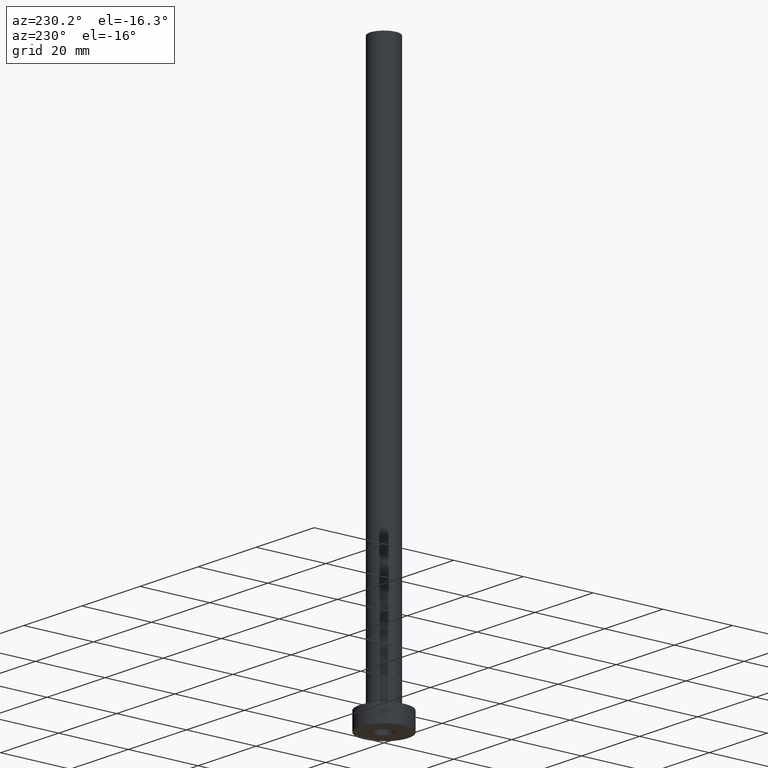
[diagram: clean part render]
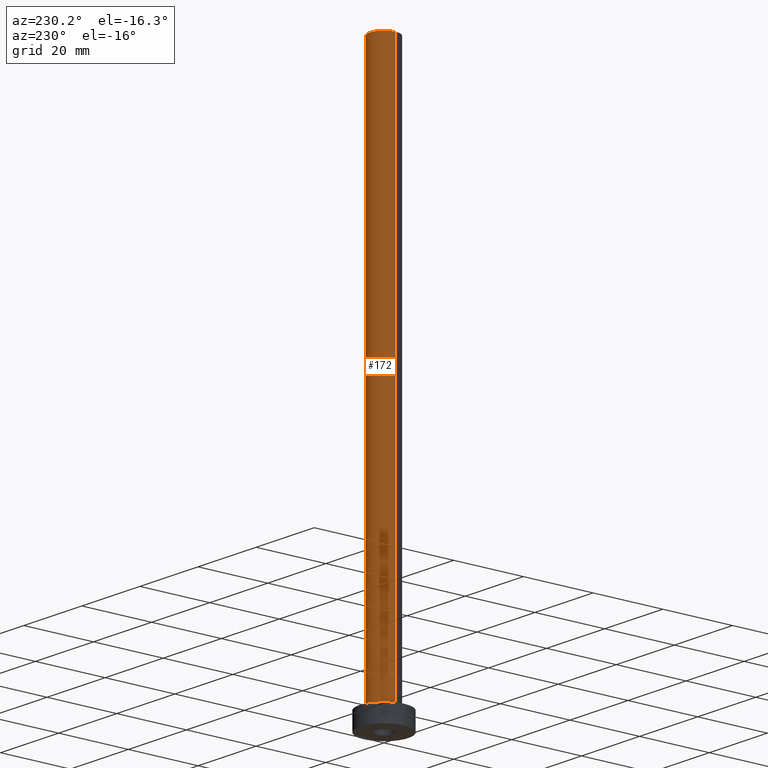
[diagram: same view with one face highlighted and labeled with its STEP entity id]
A machine part, auxiliary view. The second image highlights one B-rep face of the part: STEP entity #172.
In plain terms, the highlighted cylindrical surface (edge-blend (fillet) strip) has radius 4 mm, axis along (-0, -0, -1).
Its self-contained STEP definition (entity closure, byte-faithful):
#1 = ORIENTED_EDGE ( 'NONE', *, *, #115, .T. ) ;
#6 = CARTESIAN_POINT ( 'NONE',  ( 4.000000000000000000, 4.898587196589412829E-16, 160.0000000000000000 ) ) ;
#14 = DIRECTION ( 'NONE',  ( -0.000000000000000000, -0.000000000000000000, -1.000000000000000000 ) ) ;
#20 = CYLINDRICAL_SURFACE ( 'NONE', #58, 4.000000000000000000 ) ;
#23 = DIRECTION ( 'NONE',  ( 0.000000000000000000, 0.000000000000000000, 1.000000000000000000 ) ) ;
#25 = LINE ( 'NONE', #60, #409 ) ;
#29 = CIRCLE ( 'NONE', #368, 4.000000000000000000 ) ;
#41 = ORIENTED_EDGE ( 'NONE', *, *, #248, .T. ) ;
#58 = AXIS2_PLACEMENT_3D ( 'NONE', #272, #14, #166 ) ;
#60 = CARTESIAN_POINT ( 'NONE',  ( -4.000000000000000000, 0.000000000000000000, 160.0000000000000000 ) ) ;
#67 = DIRECTION ( 'NONE',  ( 1.000000000000000000, 0.000000000000000000, 0.000000000000000000 ) ) ;
#86 = FACE_OUTER_BOUND ( 'NONE', #285, .T. ) ;
#96 = EDGE_CURVE ( 'NONE', #456, #253, #25, .T. ) ;
#114 = CARTESIAN_POINT ( 'NONE',  ( 0.000000000000000000, 0.000000000000000000, 5.500000000000005329 ) ) ;
#115 = EDGE_CURVE ( 'NONE', #325, #218, #269, .T. ) ;
#126 = AXIS2_PLACEMENT_3D ( 'NONE', #455, #23, #443 ) ;
#127 = DIRECTION ( 'NONE',  ( -0.000000000000000000, -0.000000000000000000, -1.000000000000000000 ) ) ;
#150 = DIRECTION ( 'NONE',  ( 0.000000000000000000, 0.000000000000000000, 1.000000000000000000 ) ) ;
#161 = CARTESIAN_POINT ( 'NONE',  ( -4.000000000000000000, 0.000000000000000000, 160.0000000000000000 ) ) ;
#166 = DIRECTION ( 'NONE',  ( -1.000000000000000000, 0.000000000000000000, 0.000000000000000000 ) ) ;
#172 = ADVANCED_FACE ( 'NONE', ( #86 ), #20, .T. ) ;
#182 = EDGE_CURVE ( 'NONE', #325, #456, #400, .T. ) ;
#205 = CARTESIAN_POINT ( 'NONE',  ( 4.000000000000000000, 4.898587196589412829E-16, 160.0000000000000000 ) ) ;
#218 = VERTEX_POINT ( 'NONE', #219 ) ;
#219 = CARTESIAN_POINT ( 'NONE',  ( 4.000000000000000000, 4.898587196589412829E-16, 5.500000000000005329 ) ) ;
#248 = EDGE_CURVE ( 'NONE', #218, #253, #29, .T. ) ;
#253 = VERTEX_POINT ( 'NONE', #423 ) ;
#255 = ORIENTED_EDGE ( 'NONE', *, *, #182, .F. ) ;
#269 = LINE ( 'NONE', #205, #390 ) ;
#272 = CARTESIAN_POINT ( 'NONE',  ( 0.000000000000000000, 0.000000000000000000, 160.0000000000000000 ) ) ;
#285 = EDGE_LOOP ( 'NONE', ( #255, #1, #41, #380 ) ) ;
#325 = VERTEX_POINT ( 'NONE', #6 ) ;
#337 = DIRECTION ( 'NONE',  ( -0.000000000000000000, -0.000000000000000000, -1.000000000000000000 ) ) ;
#368 = AXIS2_PLACEMENT_3D ( 'NONE', #114, #150, #67 ) ;
#380 = ORIENTED_EDGE ( 'NONE', *, *, #96, .F. ) ;
#390 = VECTOR ( 'NONE', #127, 1000.000000000000000 ) ;
#400 = CIRCLE ( 'NONE', #126, 4.000000000000000000 ) ;
#409 = VECTOR ( 'NONE', #337, 1000.000000000000000 ) ;
#423 = CARTESIAN_POINT ( 'NONE',  ( -4.000000000000000000, 0.000000000000000000, 5.500000000000005329 ) ) ;
#443 = DIRECTION ( 'NONE',  ( 1.000000000000000000, 0.000000000000000000, 0.000000000000000000 ) ) ;
#455 = CARTESIAN_POINT ( 'NONE',  ( 0.000000000000000000, 0.000000000000000000, 160.0000000000000000 ) ) ;
#456 = VERTEX_POINT ( 'NONE', #161 ) ;